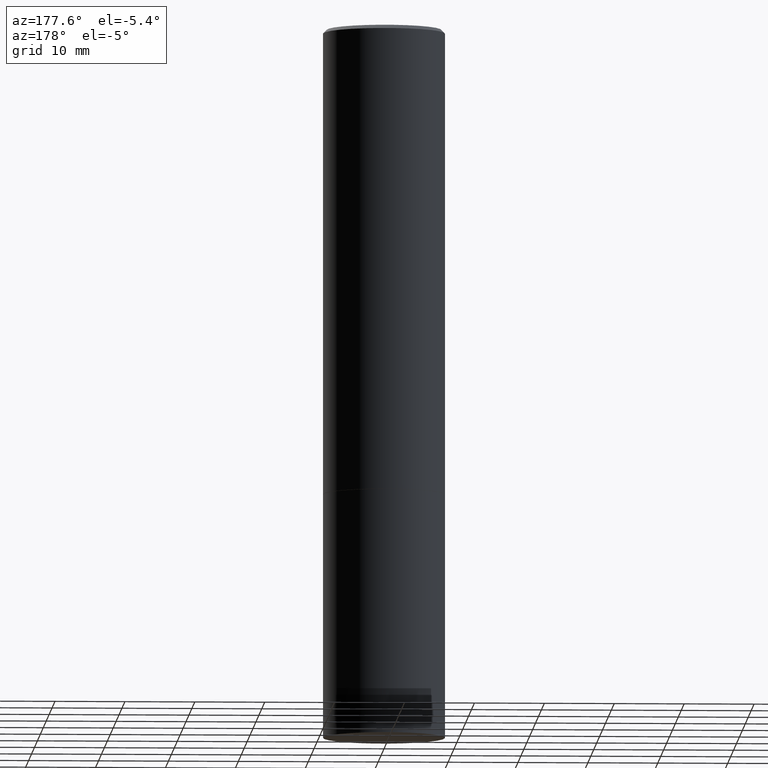
[diagram: clean part render]
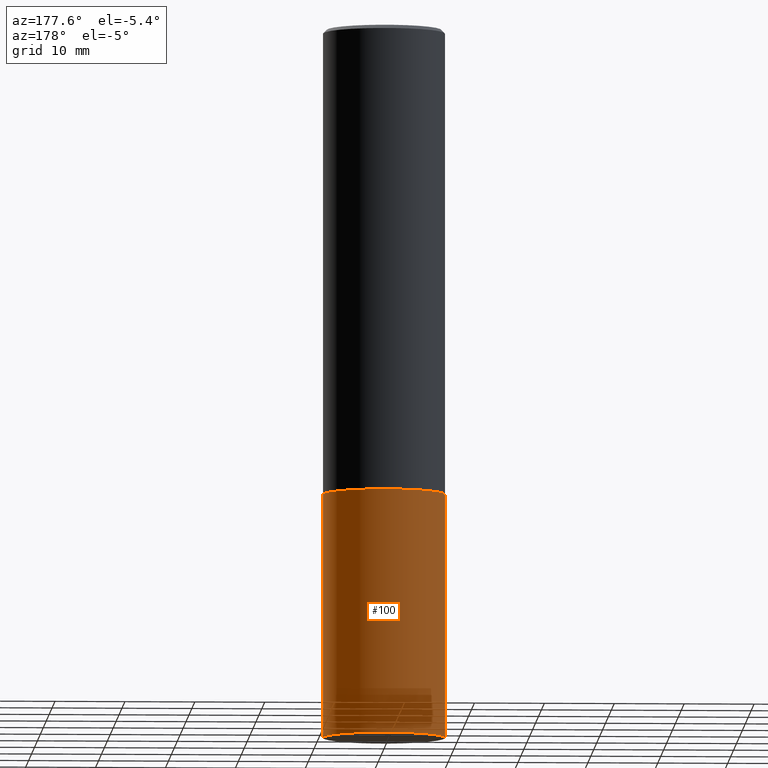
[diagram: same view with one face highlighted and labeled with its STEP entity id]
A machine part, auxiliary view. The second image highlights one B-rep face of the part: STEP entity #100.
In plain terms, the highlighted cylindrical surface (partial cylindrical patch) has radius 8.7312 mm, axis along (-0, 0, 1).
Its self-contained STEP definition (entity closure, byte-faithful):
#31 = EDGE_CURVE ( 'NONE', #377, #283, #322, .T. ) ;
#36 = ORIENTED_EDGE ( 'NONE', *, *, #139, .F. ) ;
#52 = DIRECTION ( 'NONE',  ( 1.000000000000000000, -6.982962677686265922E-15, 4.876176775795935793E-29 ) ) ;
#60 = CARTESIAN_POINT ( 'NONE',  ( 0.3437500000000006661, -1.632422154210654946E-14, -4.000000000000000000 ) ) ;
#62 = CARTESIAN_POINT ( 'NONE',  ( -0.3437500000000006661, -1.156553193491792420E-14, -4.000000000000000000 ) ) ;
#67 = CIRCLE ( 'NONE', #118, 0.3437500000000000000 ) ;
#81 = CARTESIAN_POINT ( 'NONE',  ( -0.3437500000000000000, 2.442490654175344389E-15, -1.690883937275123635E-29 ) ) ;
#88 = EDGE_CURVE ( 'NONE', #256, #283, #140, .T. ) ;
#92 = CARTESIAN_POINT ( 'NONE',  ( -0.3437500000000000000, -9.123041280742575082E-15, -2.625000000000000000 ) ) ;
#100 = ADVANCED_FACE ( 'NONE', ( #229 ), #349, .T. ) ;
#114 = DIRECTION ( 'NONE',  ( -2.445468806185136877E-29, 3.491481338843145188E-15, 1.000000000000000000 ) ) ;
#116 = DIRECTION ( 'NONE',  ( -2.445468806185136597E-29, 3.491481338843145583E-15, 1.000000000000000000 ) ) ;
#118 = AXIS2_PLACEMENT_3D ( 'NONE', #119, #116, #235 ) ;
#119 = CARTESIAN_POINT ( 'NONE',  ( 9.781875224740546387E-29, -1.396592535537258233E-14, -4.000000000000000000 ) ) ;
#139 = EDGE_CURVE ( 'NONE', #368, #377, #172, .T. ) ;
#140 = LINE ( 'NONE', #81, #188 ) ;
#162 = EDGE_LOOP ( 'NONE', ( #350, #173, #189, #36 ) ) ;
#170 = DIRECTION ( 'NONE',  ( 1.000000000000000000, -6.982962677686269077E-15, 0.000000000000000000 ) ) ;
#172 = LINE ( 'NONE', #262, #276 ) ;
#173 = ORIENTED_EDGE ( 'NONE', *, *, #88, .T. ) ;
#188 = VECTOR ( 'NONE', #198, 39.37007874015748143 ) ;
#189 = ORIENTED_EDGE ( 'NONE', *, *, #31, .F. ) ;
#198 = DIRECTION ( 'NONE',  ( -2.445468806185136877E-29, 3.491481338843145188E-15, 1.000000000000000000 ) ) ;
#201 = CARTESIAN_POINT ( 'NONE',  ( 0.000000000000000000, 0.000000000000000000, 0.000000000000000000 ) ) ;
#229 = FACE_OUTER_BOUND ( 'NONE', #162, .T. ) ;
#235 = DIRECTION ( 'NONE',  ( 1.000000000000000000, -6.982962677686269077E-15, 0.000000000000000000 ) ) ;
#252 = AXIS2_PLACEMENT_3D ( 'NONE', #315, #340, #170 ) ;
#256 = VERTEX_POINT ( 'NONE', #62 ) ;
#262 = CARTESIAN_POINT ( 'NONE',  ( 0.3437500000000000000, -2.400393420454653787E-15, 1.676185766679852859E-29 ) ) ;
#276 = VECTOR ( 'NONE', #114, 39.37007874015748143 ) ;
#283 = VERTEX_POINT ( 'NONE', #92 ) ;
#297 = CARTESIAN_POINT ( 'NONE',  ( 0.3437500000000000000, -1.156553193491791158E-14, -2.625000000000000000 ) ) ;
#314 = EDGE_CURVE ( 'NONE', #368, #256, #67, .T. ) ;
#315 = CARTESIAN_POINT ( 'NONE',  ( 6.419355616235983567E-29, -9.165138514463256612E-15, -2.625000000000000000 ) ) ;
#317 = DIRECTION ( 'NONE',  ( -2.445468806185136597E-29, 3.491481338843145583E-15, 1.000000000000000000 ) ) ;
#322 = CIRCLE ( 'NONE', #252, 0.3437500000000000000 ) ;
#340 = DIRECTION ( 'NONE',  ( -2.445468806185136597E-29, 3.491481338843145583E-15, 1.000000000000000000 ) ) ;
#349 = CYLINDRICAL_SURFACE ( 'NONE', #383, 0.3437500000000000000 ) ;
#350 = ORIENTED_EDGE ( 'NONE', *, *, #314, .T. ) ;
#368 = VERTEX_POINT ( 'NONE', #60 ) ;
#377 = VERTEX_POINT ( 'NONE', #297 ) ;
#383 = AXIS2_PLACEMENT_3D ( 'NONE', #201, #317, #52 ) ;